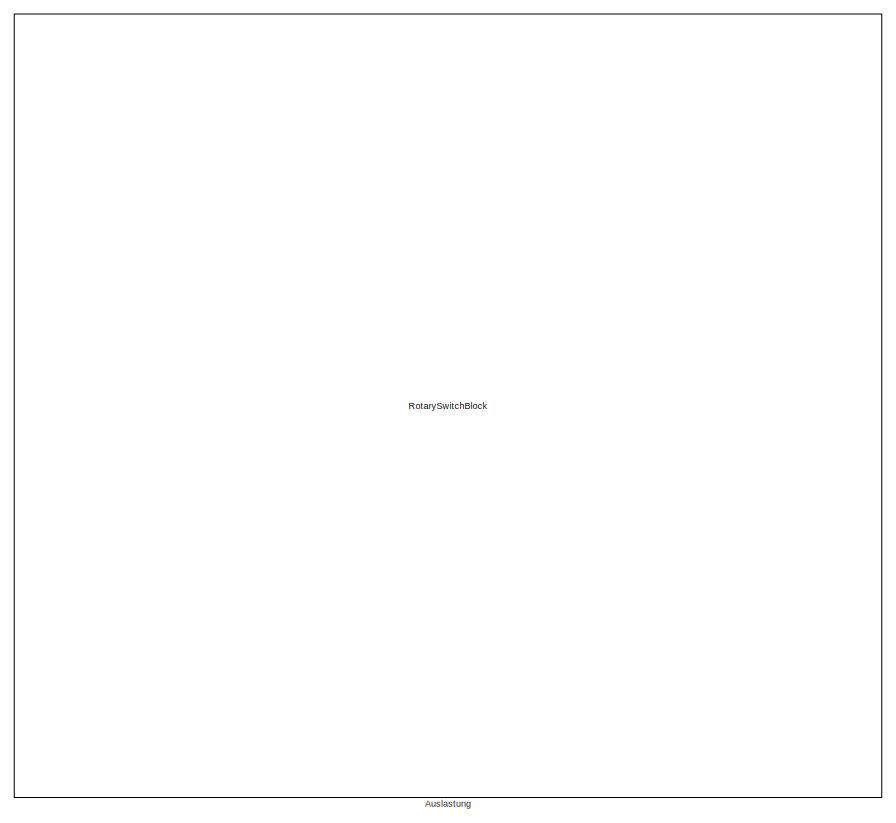
[diagram: root canvas - part 1/13, top left region]
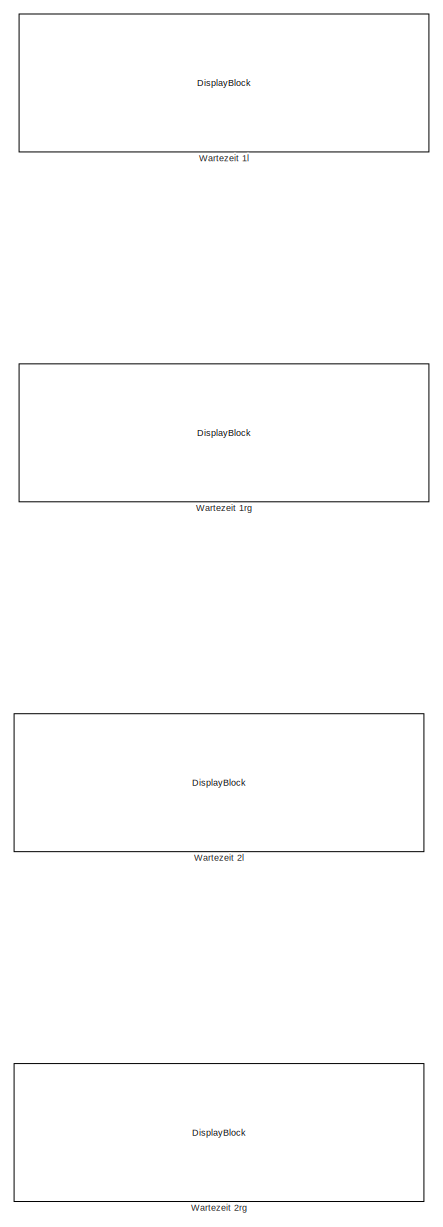
[diagram: root canvas - part 2/13, top right region]
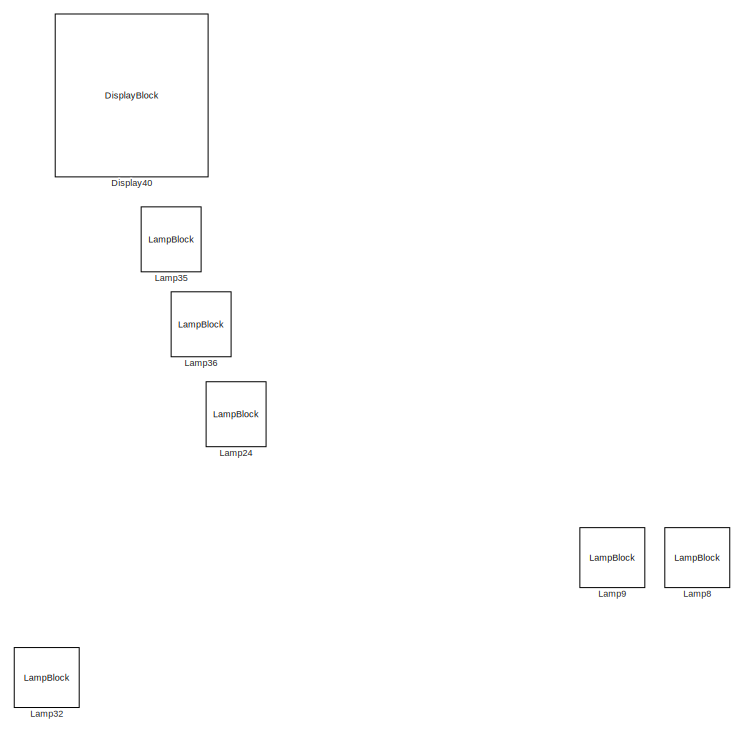
[diagram: root canvas - part 3/13, top center region]
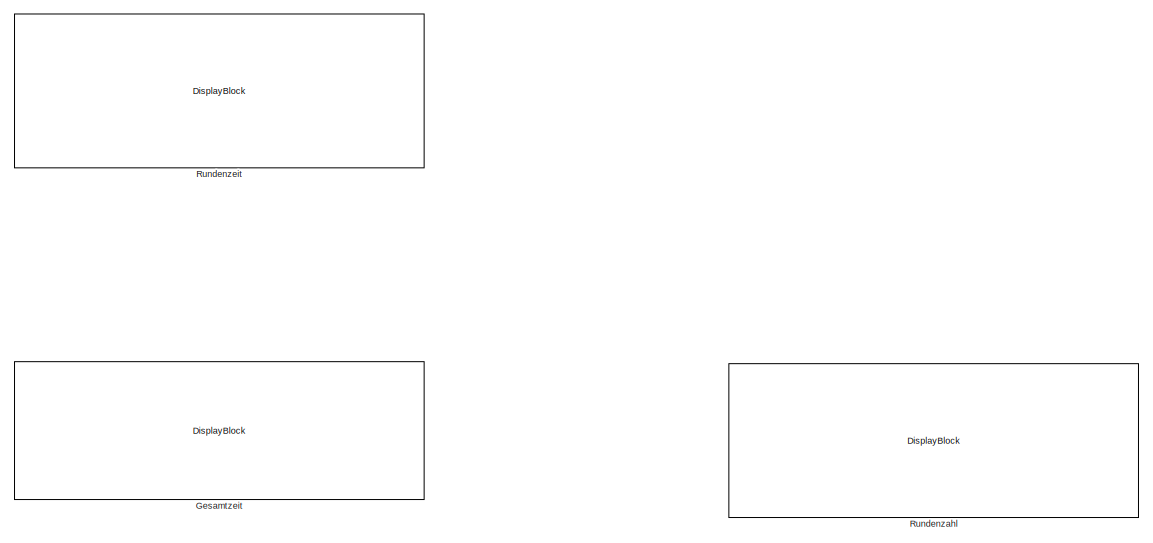
[diagram: root canvas - part 4/13, top right region]
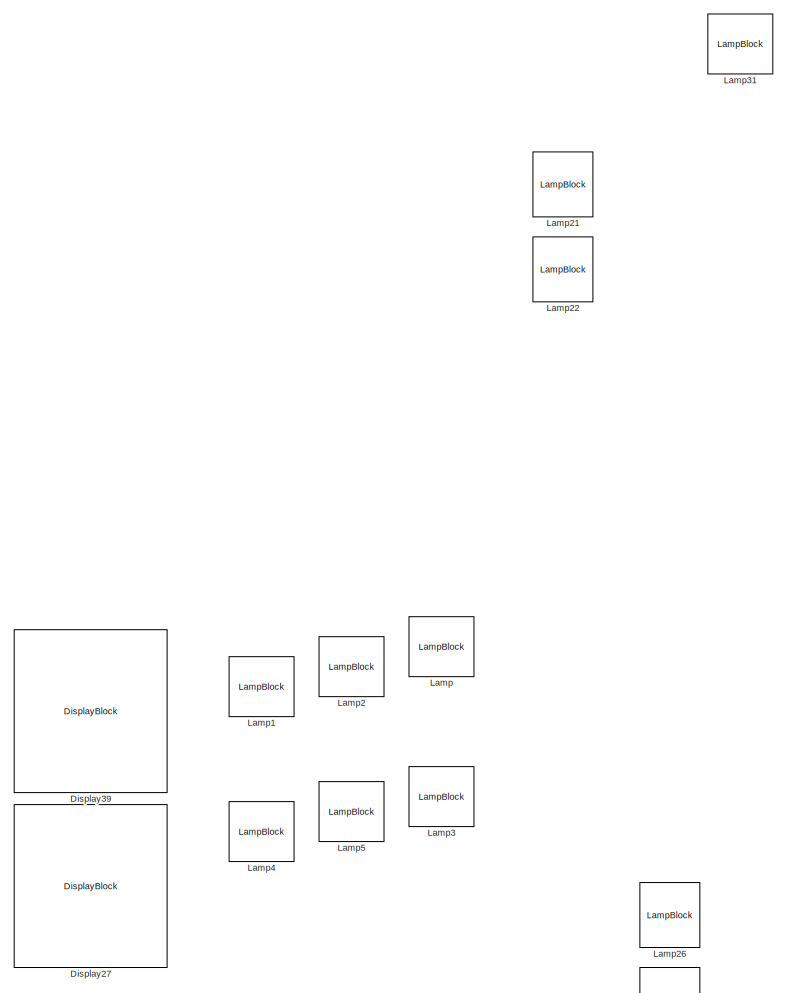
[diagram: root canvas - part 5/13, middle left region]
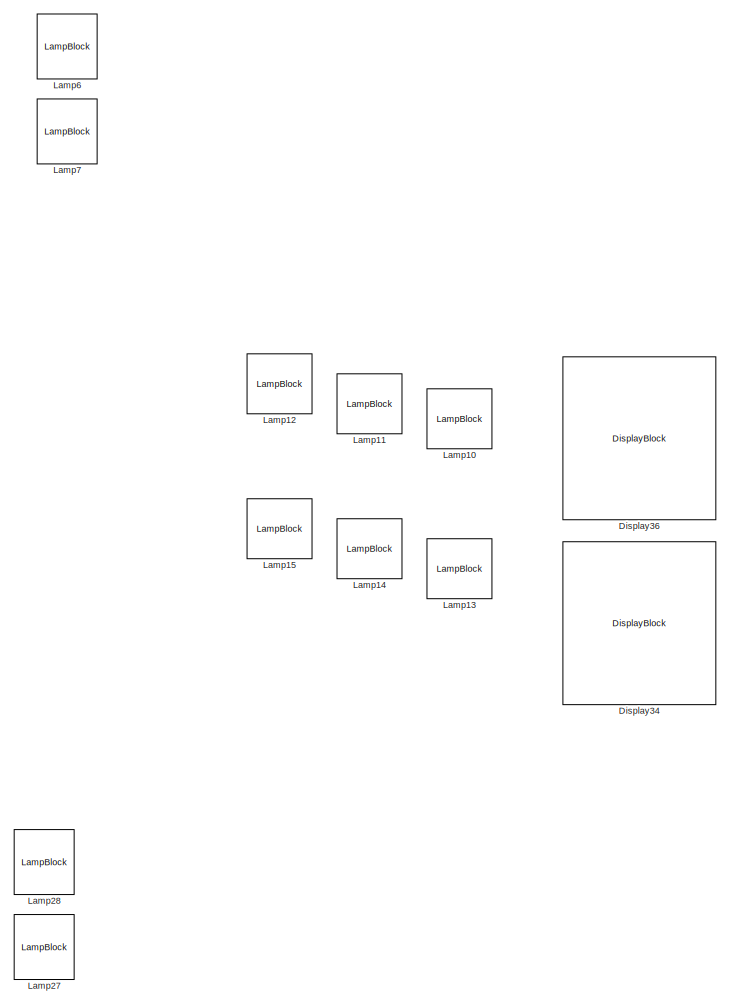
[diagram: root canvas - part 6/13, central region]
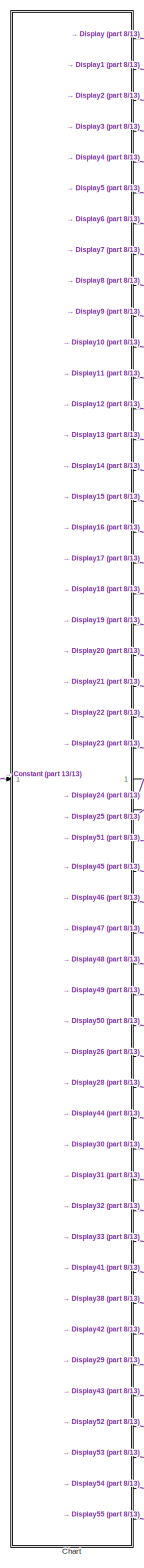
[diagram: root canvas - part 7/13, bottom left region]
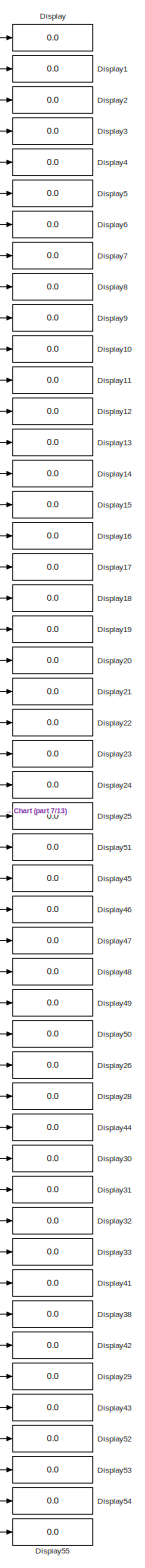
[diagram: root canvas - part 8/13, bottom left region]
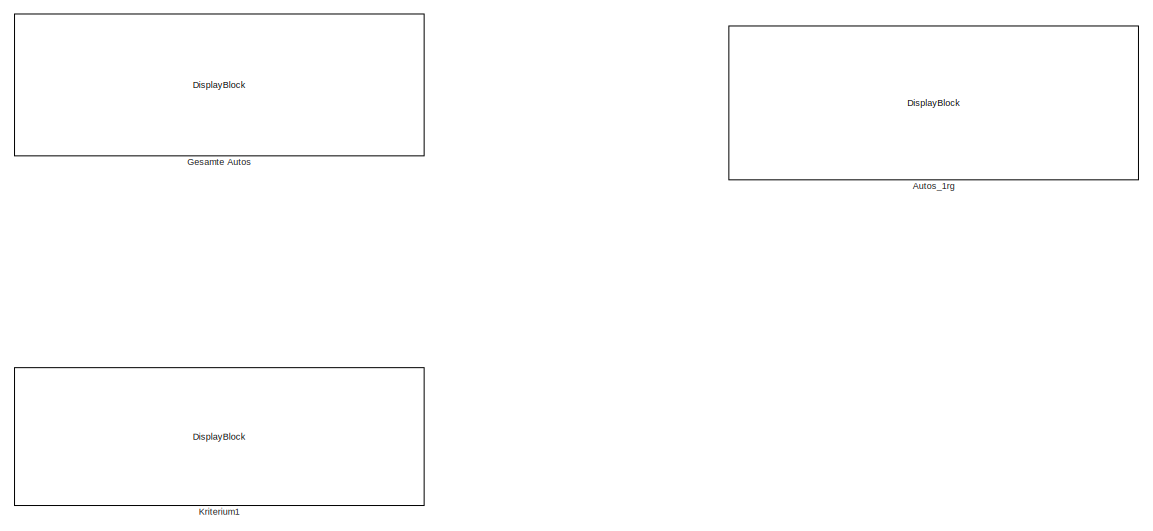
[diagram: root canvas - part 9/13, middle right region]
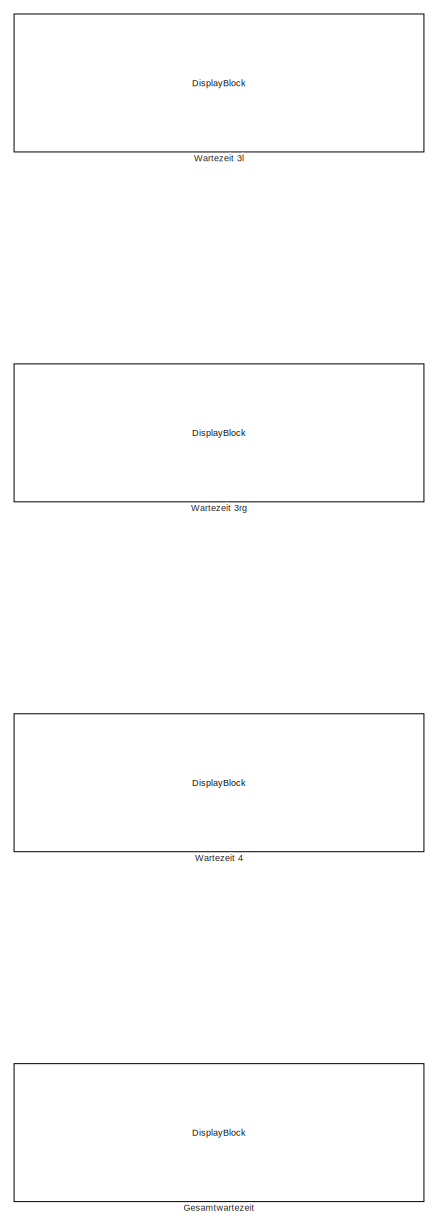
[diagram: root canvas - part 10/13, bottom right region]
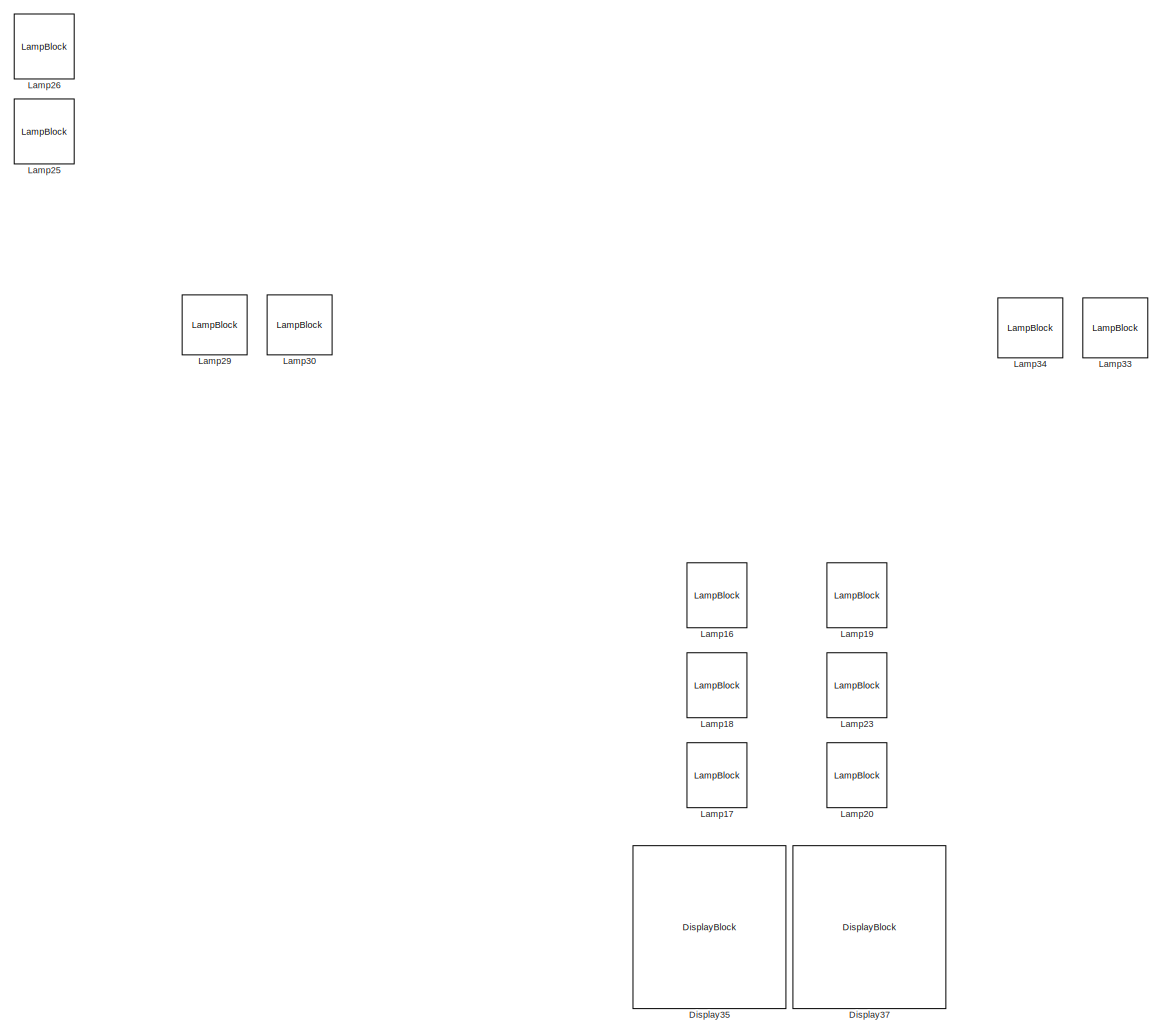
[diagram: root canvas - part 11/13, bottom center region]
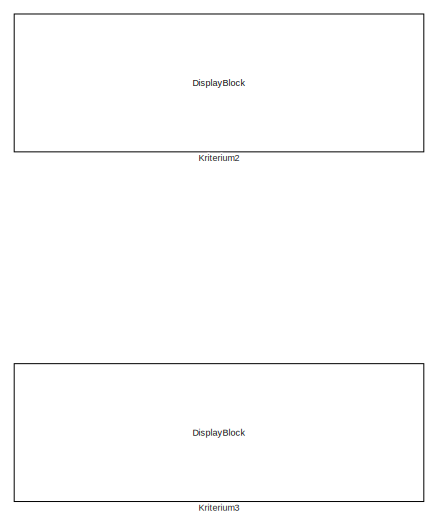
[diagram: root canvas - part 12/13, bottom right region]
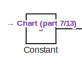
[diagram: root canvas - part 13/13, bottom left region]
MODEL slx_5e4897a48caa
KIND model
CONFIG AbsTol = auto
CONFIG EnableMultiTasking = off
CONFIG FixedStep = 1
CONFIG MaxStep = auto
CONFIG MinStep = auto
CONFIG RelTol = 1e-3
CONFIG SampleTimeConstraint = Unconstrained
CONFIG SolverName = FixedStepAuto
CONFIG StartTime = 0.0
CONFIG StopTime = 10000
WORKSPACE source: MATLAB code (in-file)
WORKSPACE code: function [autos_l1, autos_rg1, autos_2l, autos_2rg, autos_3l, autos_3rg, autos_4, fehler] = generateCars(Auslastung)
WORKSPACE code: if (auslastung == 1)
WORKSPACE autos_l1 = round(randn())
WORKSPACE autos_rg1 = round(randn())
WORKSPACE autos_2l = round(randn())
WORKSPACE autos_2rg = round(randn())
WORKSPACE autos_3l = round(randn())
WORKSPACE autos_3rg = round(randn())
WORKSPACE autos_4 = round(randn())
WORKSPACE code: else
WORKSPACE fehler = 1
WORKSPACE code: end
WORKSPACE code: if (auslastung == 2)
WORKSPACE autos_l1 = round(randn())
WORKSPACE autos_rg1 = round(4 + 2 * randn())
WORKSPACE autos_2l = round(1 + randn())
WORKSPACE autos_2rg = round(4 + 2 * randn())
WORKSPACE autos_3l = round(randn())
WORKSPACE autos_3rg = round(2 + randn())
WORKSPACE autos_4 = round(1 + randn())
WORKSPACE code: else
WORKSPACE fehler = 1
WORKSPACE code: end
WORKSPACE code: if (auslastung == 3)
WORKSPACE autos_l1 = round(1.5 + randn())
WORKSPACE autos_rg1 = round(7 + 2 * randn())
WORKSPACE autos_2l = round(2 + randn())
WORKSPACE autos_2rg = round(7 + 2 * randn())
WORKSPACE autos_3l = round(2 * randn())
WORKSPACE autos_3rg = round(3 + randn())
WORKSPACE autos_4 = round(2 + randn())
WORKSPACE code: else
WORKSPACE fehler = 1
WORKSPACE code: end
WORKSPACE code: if (auslastung == 4)
WORKSPACE autos_l1 = round(2.5 + randn())
WORKSPACE autos_rg1 = round(13 + 3 * randn())
WORKSPACE autos_2l = round(5 + randn())
WORKSPACE autos_2rg = round(13 + 3 * randn())
WORKSPACE autos_3l = round(2 + randn())
WORKSPACE autos_3rg = round(2 + randn())
WORKSPACE autos_4 = round(5 + randn())
WORKSPACE code: else
WORKSPACE fehler = 1
WORKSPACE code: end
WORKSPACE code: end
BLOCK [RotarySwitchBlock] Auslastung
  LabelPosition = Hide
BLOCK [DisplayBlock] Autos_1rg
  LabelPosition = Hide
  Transparency = 1
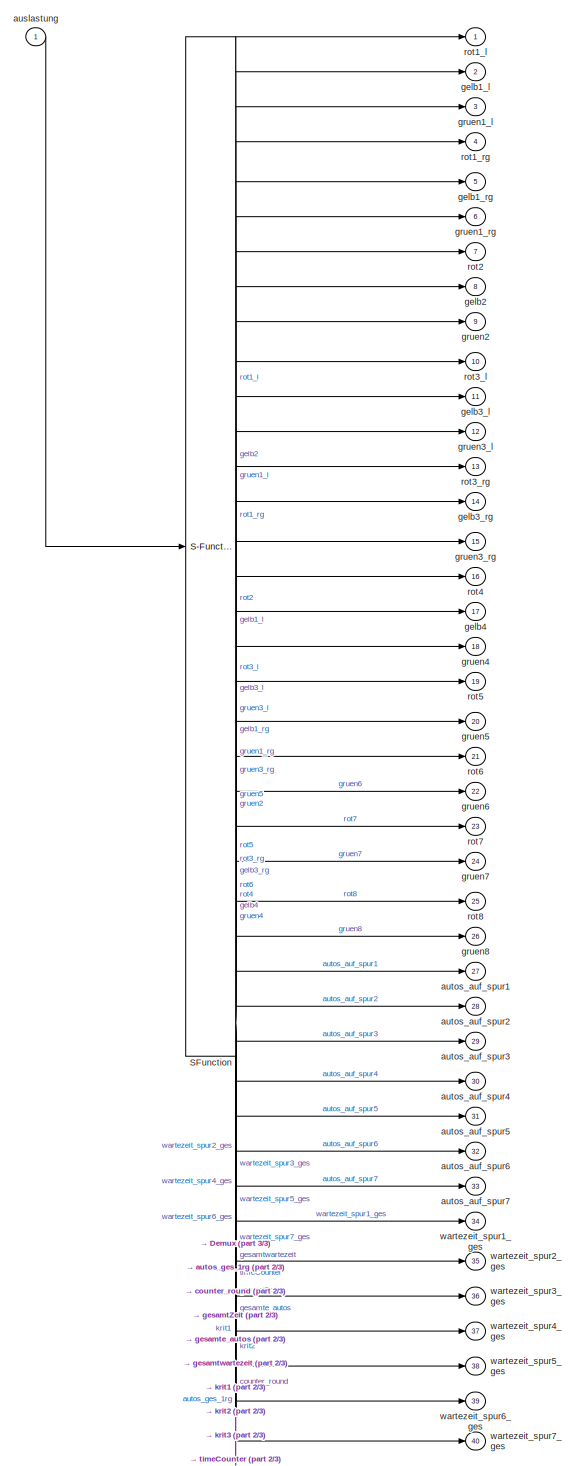
[diagram: Chart - part 1/3, most of the canvas]
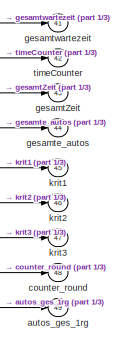
[diagram: Chart - part 2/3, bottom right region]
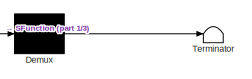
[diagram: Chart - part 3/3, bottom right region]
BLOCK [SubSystem] Chart
  ErrorFcn = Stateflow.Translate.translate
  PermitHierarchicalResolution = ExplicitOnly
  SFBlockType = Chart
  TreatAsAtomicUnit = on
BLOCK [Demux] Chart/ Demux 
  Outputs = 1
BLOCK [S-Function] Chart/ SFunction 
  EnableBusSupport = on
  FunctionName = sf_sfun
  PortCounts = [1 50]
  SFcnIsStateOwnerBlock = off
  SFunctionDeploymentMode = off
  Tag = Stateflow S-Function 3
BLOCK [Terminator] Chart/ Terminator 
BLOCK [Inport] Chart/auslastung
BLOCK [Outport] Chart/autos_auf_spur1
  Port = 27
BLOCK [Outport] Chart/autos_auf_spur2
  Port = 28
BLOCK [Outport] Chart/autos_auf_spur3
  Port = 29
BLOCK [Outport] Chart/autos_auf_spur4
  Port = 30
BLOCK [Outport] Chart/autos_auf_spur5
  Port = 31
BLOCK [Outport] Chart/autos_auf_spur6
  Port = 32
BLOCK [Outport] Chart/autos_auf_spur7
  Port = 33
BLOCK [Outport] Chart/autos_ges_1rg
  Port = 49
BLOCK [Outport] Chart/counter_round
  Port = 48
BLOCK [Outport] Chart/gelb1_l
  Port = 2
BLOCK [Outport] Chart/gelb1_rg
  Port = 5
BLOCK [Outport] Chart/gelb2
  Port = 8
BLOCK [Outport] Chart/gelb3_l
  Port = 11
BLOCK [Outport] Chart/gelb3_rg
  Port = 14
BLOCK [Outport] Chart/gelb4
  Port = 17
BLOCK [Outport] Chart/gesamtZeit
  Port = 43
BLOCK [Outport] Chart/gesamte_autos
  Port = 44
BLOCK [Outport] Chart/gesamtwartezeit
  Port = 41
BLOCK [Outport] Chart/gruen1_l
  Port = 3
BLOCK [Outport] Chart/gruen1_rg
  Port = 6
BLOCK [Outport] Chart/gruen2
  Port = 9
BLOCK [Outport] Chart/gruen3_l
  Port = 12
BLOCK [Outport] Chart/gruen3_rg
  Port = 15
BLOCK [Outport] Chart/gruen4
  Port = 18
BLOCK [Outport] Chart/gruen5
  Port = 20
BLOCK [Outport] Chart/gruen6
  Port = 22
BLOCK [Outport] Chart/gruen7
  Port = 24
BLOCK [Outport] Chart/gruen8
  Port = 26
BLOCK [Outport] Chart/krit1
  Port = 45
BLOCK [Outport] Chart/krit2
  Port = 46
BLOCK [Outport] Chart/krit3
  Port = 47
BLOCK [Outport] Chart/rot1_l
BLOCK [Outport] Chart/rot1_rg
  Port = 4
BLOCK [Outport] Chart/rot2
  Port = 7
BLOCK [Outport] Chart/rot3_l
  Port = 10
BLOCK [Outport] Chart/rot3_rg
  Port = 13
BLOCK [Outport] Chart/rot4
  Port = 16
BLOCK [Outport] Chart/rot5
  Port = 19
BLOCK [Outport] Chart/rot6
  Port = 21
BLOCK [Outport] Chart/rot7
  Port = 23
BLOCK [Outport] Chart/rot8
  Port = 25
BLOCK [Outport] Chart/timeCounter
  Port = 42
BLOCK [Outport] Chart/wartezeit_spur1_ges
  Port = 34
BLOCK [Outport] Chart/wartezeit_spur2_ges
  Port = 35
BLOCK [Outport] Chart/wartezeit_spur3_ges
  Port = 36
BLOCK [Outport] Chart/wartezeit_spur4_ges
  Port = 37
BLOCK [Outport] Chart/wartezeit_spur5_ges
  Port = 38
BLOCK [Outport] Chart/wartezeit_spur6_ges
  Port = 39
BLOCK [Outport] Chart/wartezeit_spur7_ges
  Port = 40
BLOCK [Constant] Constant
  Value = 3
BLOCK [Display] Display
  Decimation = 1
BLOCK [Display] Display1
  Decimation = 1
BLOCK [Display] Display10
  Decimation = 1
BLOCK [Display] Display11
  Decimation = 1
BLOCK [Display] Display12
  Decimation = 1
BLOCK [Display] Display13
  Decimation = 1
BLOCK [Display] Display14
  Decimation = 1
BLOCK [Display] Display15
  Decimation = 1
BLOCK [Display] Display16
  Decimation = 1
BLOCK [Display] Display17
  Decimation = 1
BLOCK [Display] Display18
  Decimation = 1
BLOCK [Display] Display19
  Decimation = 1
BLOCK [Display] Display2
  Decimation = 1
BLOCK [Display] Display20
  Decimation = 1
BLOCK [Display] Display21
  Decimation = 1
BLOCK [Display] Display22
  Decimation = 1
BLOCK [Display] Display23
  Decimation = 1
BLOCK [Display] Display24
  Decimation = 1
BLOCK [Display] Display25
  Decimation = 1
BLOCK [Display] Display26
  Decimation = 1
BLOCK [DisplayBlock] Display27
  LabelPosition = Hide
  Layout = Fill available space
  Transparency = 1
BLOCK [Display] Display28
  Decimation = 1
BLOCK [Display] Display29
  Decimation = 1
BLOCK [Display] Display3
  Decimation = 1
BLOCK [Display] Display30
  Decimation = 1
BLOCK [Display] Display31
  Decimation = 1
BLOCK [Display] Display32
  Decimation = 1
BLOCK [Display] Display33
  Decimation = 1
BLOCK [DisplayBlock] Display34
  LabelPosition = Hide
  Layout = Fill available space
  Transparency = 1
BLOCK [DisplayBlock] Display35
  LabelPosition = Hide
  Layout = Fill available space
  Transparency = 1
BLOCK [DisplayBlock] Display36
  LabelPosition = Hide
  Layout = Fill available space
  Transparency = 1
BLOCK [DisplayBlock] Display37
  LabelPosition = Hide
  Layout = Fill available space
  Transparency = 1
BLOCK [Display] Display38
  Decimation = 1
BLOCK [DisplayBlock] Display39
  LabelPosition = Hide
  Layout = Fill available space
  Transparency = 1
BLOCK [Display] Display4
  Decimation = 1
BLOCK [DisplayBlock] Display40
  LabelPosition = Hide
  Layout = Fill available space
  Transparency = 1
BLOCK [Display] Display41
  Decimation = 1
BLOCK [Display] Display42
  Decimation = 1
BLOCK [Display] Display43
  Decimation = 1
BLOCK [Display] Display44
  Decimation = 1
BLOCK [Display] Display45
  Decimation = 1
BLOCK [Display] Display46
  Decimation = 1
BLOCK [Display] Display47
  Decimation = 1
BLOCK [Display] Display48
  Decimation = 1
BLOCK [Display] Display49
  Decimation = 1
BLOCK [Display] Display5
  Decimation = 1
BLOCK [Display] Display50
  Decimation = 1
BLOCK [Display] Display51
  Decimation = 1
BLOCK [Display] Display52
  Decimation = 1
BLOCK [Display] Display53
  Decimation = 1
BLOCK [Display] Display54
  Decimation = 1
BLOCK [Display] Display55
  Decimation = 1
BLOCK [Display] Display6
  Decimation = 1
BLOCK [Display] Display7
  Decimation = 1
BLOCK [Display] Display8
  Decimation = 1
BLOCK [Display] Display9
  Decimation = 1
BLOCK [DisplayBlock] Gesamte Autos
  LabelPosition = Hide
  Transparency = 1
BLOCK [DisplayBlock] Gesamtwartezeit
  Format = Integer
  LabelPosition = Hide
  Transparency = 1
BLOCK [DisplayBlock] Gesamtzeit
  LabelPosition = Hide
  Transparency = 1
BLOCK [DisplayBlock] Kriterium1
  LabelPosition = Hide
  Transparency = 1
BLOCK [DisplayBlock] Kriterium2
  LabelPosition = Hide
  Transparency = 1
BLOCK [DisplayBlock] Kriterium3
  LabelPosition = Hide
  Transparency = 1
BLOCK [LampBlock] Lamp
  LabelPosition = Hide
BLOCK [LampBlock] Lamp1
  LabelPosition = Hide
BLOCK [LampBlock] Lamp10
  LabelPosition = Hide
BLOCK [LampBlock] Lamp11
  LabelPosition = Hide
BLOCK [LampBlock] Lamp12
  LabelPosition = Hide
BLOCK [LampBlock] Lamp13
  LabelPosition = Hide
BLOCK [LampBlock] Lamp14
  LabelPosition = Hide
BLOCK [LampBlock] Lamp15
  LabelPosition = Hide
BLOCK [LampBlock] Lamp16
  LabelPosition = Hide
  NameLocation = right
BLOCK [LampBlock] Lamp17
  LabelPosition = Hide
  NameLocation = right
BLOCK [LampBlock] Lamp18
  LabelPosition = Hide
  NameLocation = right
BLOCK [LampBlock] Lamp19
  LabelPosition = Hide
  NameLocation = right
BLOCK [LampBlock] Lamp2
  LabelPosition = Hide
BLOCK [LampBlock] Lamp20
  LabelPosition = Hide
  NameLocation = right
BLOCK [LampBlock] Lamp21
  LabelPosition = Hide
  NameLocation = right
BLOCK [LampBlock] Lamp22
  LabelPosition = Hide
  NameLocation = right
BLOCK [LampBlock] Lamp23
  LabelPosition = Hide
  NameLocation = right
BLOCK [LampBlock] Lamp24
  LabelPosition = Hide
  NameLocation = left
BLOCK [LampBlock] Lamp25
  LabelPosition = Hide
  NameLocation = left
BLOCK [LampBlock] Lamp26
  LabelPosition = Hide
  NameLocation = left
BLOCK [LampBlock] Lamp27
  LabelPosition = Hide
  NameLocation = left
BLOCK [LampBlock] Lamp28
  LabelPosition = Hide
  NameLocation = left
BLOCK [LampBlock] Lamp29
  LabelPosition = Hide
  NameLocation = top
BLOCK [LampBlock] Lamp3
  LabelPosition = Hide
BLOCK [LampBlock] Lamp30
  LabelPosition = Hide
  NameLocation = top
BLOCK [LampBlock] Lamp31
  LabelPosition = Hide
  NameLocation = top
BLOCK [LampBlock] Lamp32
  LabelPosition = Hide
  NameLocation = top
BLOCK [LampBlock] Lamp33
  LabelPosition = Hide
BLOCK [LampBlock] Lamp34
  LabelPosition = Hide
BLOCK [LampBlock] Lamp35
  LabelPosition = Hide
  NameLocation = left
BLOCK [LampBlock] Lamp36
  LabelPosition = Hide
  NameLocation = left
BLOCK [LampBlock] Lamp4
  LabelPosition = Hide
BLOCK [LampBlock] Lamp5
  LabelPosition = Hide
BLOCK [LampBlock] Lamp6
  LabelPosition = Hide
  NameLocation = right
BLOCK [LampBlock] Lamp7
  LabelPosition = Hide
  NameLocation = right
BLOCK [LampBlock] Lamp8
  LabelPosition = Hide
  NameLocation = top
BLOCK [LampBlock] Lamp9
  LabelPosition = Hide
  NameLocation = top
BLOCK [DisplayBlock] Rundenzahl
  LabelPosition = Hide
  Transparency = 1
BLOCK [DisplayBlock] Rundenzeit
  LabelPosition = Hide
  Transparency = 1
BLOCK [DisplayBlock] Wartezeit 1l
  Format = Integer
  LabelPosition = Hide
  Transparency = 1
BLOCK [DisplayBlock] Wartezeit 1rg
  Format = Integer
  LabelPosition = Hide
  Transparency = 1
BLOCK [DisplayBlock] Wartezeit 2l
  Format = Integer
  LabelPosition = Hide
  Transparency = 1
BLOCK [DisplayBlock] Wartezeit 2rg
  Format = Integer
  LabelPosition = Hide
  Transparency = 1
BLOCK [DisplayBlock] Wartezeit 3l
  Format = Integer
  LabelPosition = Hide
  Transparency = 1
BLOCK [DisplayBlock] Wartezeit 3rg
  Format = Integer
  LabelPosition = Hide
  Transparency = 1
BLOCK [DisplayBlock] Wartezeit 4
  Format = Integer
  LabelPosition = Hide
  Transparency = 1
LINE Chart:1 -> Display:1
LINE Chart:10 -> Display9:1
LINE Chart:11 -> Display10:1
LINE Chart:12 -> Display11:1
LINE Chart:13 -> Display12:1
LINE Chart:14 -> Display13:1
LINE Chart:15 -> Display14:1
LINE Chart:16 -> Display15:1
LINE Chart:17 -> Display16:1
LINE Chart:18 -> Display17:1
LINE Chart:19 -> Display18:1
LINE Chart:2 -> Display1:1
LINE Chart:20 -> Display19:1
LINE Chart:21 -> Display20:1
LINE Chart:22 -> Display21:1
LINE Chart:23 -> Display22:1
LINE Chart:24 -> Display23:1
LINE Chart:25 -> Display24:1
LINE Chart:26 -> Display25:1
LINE Chart:27 -> Display51:1
LINE Chart:28 -> Display45:1
LINE Chart:29 -> Display46:1
LINE Chart:3 -> Display2:1
LINE Chart:30 -> Display47:1
LINE Chart:31 -> Display48:1
LINE Chart:32 -> Display49:1
LINE Chart:33 -> Display50:1
LINE Chart:34 -> Display26:1
LINE Chart:35 -> Display28:1
LINE Chart:36 -> Display44:1
LINE Chart:37 -> Display30:1
LINE Chart:38 -> Display31:1
LINE Chart:39 -> Display32:1
LINE Chart:4 -> Display3:1
LINE Chart:40 -> Display33:1
LINE Chart:41 -> Display41:1
LINE Chart:42 -> Display38:1
LINE Chart:43 -> Display42:1
LINE Chart:44 -> Display29:1
LINE Chart:45 -> Display43:1
LINE Chart:46 -> Display52:1
LINE Chart:47 -> Display53:1
LINE Chart:48 -> Display54:1
LINE Chart:49 -> Display55:1
LINE Chart:5 -> Display4:1
LINE Chart:6 -> Display5:1
LINE Chart:7 -> Display6:1
LINE Chart:8 -> Display7:1
LINE Chart:9 -> Display8:1
LINE Constant:1 -> Chart:1
CHART Chart states=76 transitions=263
  STATE_LABEL 'Start\nentry:\nclear all;\nrot1_l = 1;\ngelb1_l = 0;\ngruen1_l = 0;\nrot1_rg = 1;\ngelb1_rg = 0;\ngruen1_rg = 0;\nrot2 = 1;\ngelb2 = 0;\ngruen2 = 0;\nrot3_l = 1;\ngelb3_l = 0;\ngruen3_l = 0;\nrot3_rg = 1;\ngelb3_rg = 0;\ngruen3_rg = 0;\nrot4 = 1;\ngelb4 = 0;\ngruen4 = 0;\nrot5 = 1;\ngruen5 = 0;\nrot6 = 1;\ngruen6 = 0;\nrot7 = 1;\ngruen7 = 0;\nrot8 = 1;\ngruen8 = 0;\ntimeCounter = 0;\ntimer_spuren = [0 0 0 0 0 0 0];\ngesamtZeit ...<+769ch>'
  STATE_LABEL 'dokumentiere_startzeiten_initialisiere_wartezeiten\nen:\nstartzeiten1 = spur1;\nstartzeiten2 = spur2;\nstartzeiten3 = spur3;\nstartzeiten4 = spur4;\nstartzeiten5 = spur5;\nstartzeiten6 = spur6;\nstartzeiten7 = spur7;\nwartezeiten1 = zeros(1, length(startzeiten1));\nwartezeiten2 = zeros(1, length(startzeiten2));\nwartezeiten3 = zeros(1, length(startzeiten3));\nwartezeiten4 = zeros(1, length(startzeiten4));\nwar...<+138ch>'
  STATE_LABEL 'endzeiten_initialisieren\nen:\nendzeiten1 = zeros(1, length(spur1));\nendzeiten2 = zeros(1, length(spur2));\nendzeiten3 = zeros(1, length(spur3));\nendzeiten4 = zeros(1, length(spur4));\nendzeiten5 = zeros(1, length(spur5));\nendzeiten6 = zeros(1, length(spur6));\nendzeiten7 = zeros(1, length(spur7));'
  STATE_LABEL 'autos_neu_fkt = generiere_autos_neu(N_fkt, zeit_abstand_fkt, auslastung_fkt)'
  STATE_LABEL 'SCRIPT:\nfunction autos_neu_fkt = generiere_autos_neu(N_fkt, zeit_abstand_fkt, auslastung_fkt)\n    zeiten_fkt = zeros(1,N_fkt); %Platzhalter für Spawnzeiten\n    for i=1:N\n        zeiten_fkt(i) = zeit_abstand_fkt * i + randn();\n        if zeiten_fkt(i) < 0\n            zeiten_fkt(i) = 0\n        end\n    end\n\t\n    switch (auslastung_fkt)\n        case 1\n            wahrscheinlichkeiten = [0.12, 0.20, 0....<+1032ch>'
  STATE_LABEL '[spur1fkt, spur2fkt, spur3fkt, spur4fkt, spur5fkt, spur6fkt, spur7fkt] = spuren_aus_autos(autos_fkt, N_fkt)'
  STATE_LABEL 'SCRIPT:\nfunction [spur1fkt, spur2fkt, spur3fkt, spur4fkt, spur5fkt, spur6fkt, spur7fkt] = spuren_aus_autos(autos_fkt, N_fkt)\n    counter1 = 1; counter2 = 1; counter3 = 1; counter4 = 1; counter5 = 1; counter6 = 1; counter7 = 1;\n    spur1fkt = zeros(1,N_fkt/2);\n    spur2fkt = zeros(1,N_fkt/2);\n    spur3fkt = zeros(1,N_fkt/2);\n    spur4fkt = zeros(1,N_fkt/2);\n    spur5fkt = zeros(1,N_fkt/2);\n    spur...<+1231ch>'
  STATE_LABEL '[autos_auf_spur_fkt, spur_autos] = autos_auf_spur_generieren(spur_autos, timer, autos_auf_spur_fkt)'
  STATE_LABEL 'SCRIPT:\nfunction [autos_auf_spur_fkt, spur_autos] = autos_auf_spur_generieren(spur_autos, timer, autos_auf_spur_fkt)\n    for i = 1:length(spur_autos)\n        if (spur_autos(i) < timer && spur_autos(i) ~= 0)\n            autos_auf_spur_fkt = autos_auf_spur_fkt + 1;\n            spur_autos(i) = 0;\n        end\n    end\nend\n'
  STATE_LABEL '[anz_autos_fkt, autos_auf_spur_fkt, counter_neu_fkt, endzeiten] = generiere_gruenphase(spur, laenge, autos_auf_spur_u, counter_alt, start_timer_fkt, endzeiten, startzeiten_fkt, auslastung_fkt, autos_spur1_flag_fkt)'
  STATE_LABEL 'SCRIPT:\nfunction [anz_autos_fkt, autos_auf_spur_fkt, counter_neu_fkt, endzeiten] = generiere_gruenphase(spur, laenge, autos_auf_spur_u, counter_alt, start_timer_fkt, endzeiten, startzeiten_fkt, auslastung_fkt, autos_spur1_flag_fkt) \n    if (spur == 2 || spur == 4)  \n        if laenge < 8.9\n            anz_autos_fkt = round(0.314739 * power(laenge, 1.2629099));\n            for i = 1:min([anz_autos_...<+3608ch>'
  STATE_LABEL 'zeit_abstand_fkt = zeit_abstand_aus_auslastung(auslastung_fkt)'
  STATE_LABEL 'SCRIPT:\nfunction zeit_abstand_fkt = zeit_abstand_aus_auslastung(auslastung_fkt)\n    switch (auslastung_fkt)\n        case 1\n            zeit_abstand_fkt = 10\n        case 2\n            zeit_abstand_fkt = 4\n        case 3\n            zeit_abstand_fkt = 1.6\n        case 4\n            zeit_abstand_fkt = 0.95\n        case 5\n            zeit_abstand_fkt = 0.84\n        otherwise\n            zeit_abstand_...<+23ch>'
  STATE_LABEL 'count_spur = countOnwards(time, timeElapsed, spuren)'
  STATE_LABEL 'SCRIPT:\nfunction count_spur = countOnwards(time, timeElapsed, spuren)\n    count_spur = time;\n    for i = 1 : length(time)\n        if spuren(i) == 1\n            count_spur(i) = count_spur(i) + timeElapsed;\n        end\n    end\nend'
  STATE_LABEL 'rg1_ampel2_rotgelb\nentry:\ngelb1_rg = 1;\ngelb2 = 1;'
  STATE_LABEL 'l1_rg1_rotgelb\nentry:\ngelb1_l = 1;\ngelb1_rg = 1;'
  STATE_LABEL 'rg1_ampel2_gruen\nentry:\nrot1_rg = 0;\ngelb1_rg = 0;\ngruen1_rg = 1;\nrot2 = 0;\ngelb2 = 0;\ngruen2 = 1;\nrot7 = 0;\ngruen7 = 1;\nrot8 = 0;\ngruen8 = 1;'
  STATE_LABEL 'l1_rg1_gruen\nentry:\nrot1_l = 0;\ngelb1_l = 0;\ngruen1_l = 1;\nrot1_rg = 0;\ngelb1_rg = 0;\ngruen1_rg = 1;\nrot7 = 0;\ngruen7 = 1;'
  STATE_LABEL 'timer = resetTimer'
  STATE_LABEL 'SCRIPT:\nfunction timer = resetTimer()\n    timer = 0;\nend\n'
  STATE_LABEL 'l1_gelb\nentry:\ngelb1_l = 1;\ngruen1_l = 0;'
  STATE_LABEL 'timer = refresher(startTime, timeElapsed)'
  STATE_LABEL 'SCRIPT:\nfunction timer = refresher(startTime, timeElapsed)\n    timer = startTime + timeElapsed;\nend'
  STATE_LABEL 'l1_rot\nentry:\nrot1_l = 1;\ngelb1_l = 0;'
  STATE_LABEL 'Fuss7_rot1\nentry:\nrot7 = 1;\ngruen7 = 0;'
  STATE_LABEL 'l1_rot1\nentry:\nrot1_l = 1;\ngelb1_l = 0;'
  STATE_LABEL 'rg1_gelb1\nentry:\ngelb1_rg = 1;\ngruen1_rg = 0;'
  STATE_LABEL 'ampel2_rotgelb\nentry:\ngelb2 = 1;'
  STATE_LABEL 'ampel2_fuss8_gruen\nrot2 = 0;\ngelb2 = 0;\ngruen2 = 1;\nrot8 = 0;\ngruen8 = 1;'
  STATE_LABEL 'rg1_rot1\nentry:\ngelb1_rg = 0;\nrot1_rg = 1;'
  STATE_LABEL 'Fuss7_rot\nentry:\nrot7 = 1;\ngruen7 = 0;'
  STATE_LABEL 'rg1_gelb\nentry:\ngelb1_rg = 1;\ngruen1_rg = 0;'
  STATE_LABEL 'rg1_rot\nentry:\ngelb1_rg = 0;\nrot1_rg = 1;'
  STATE_LABEL 'fuss8_rot7\nentry:\nrot8 = 1;\ngruen8 = 0;'
  STATE_LABEL 'rg1_rot4\nentry:\ngelb1_rg = 0;\nrot1_rg = 1;'
  STATE_LABEL 'fuss8_rot3\nentry:\nrot8 = 1;\ngruen8 = 0;'
  STATE_LABEL 'rg1_rot9\nentry:\ngelb1_rg = 0;\nrot1_rg = 1'
  STATE_LABEL 'fuss8_rot2\nentry:\nrot8 = 1;\ngruen8 = 0;'
  STATE_LABEL 'rg1_rot8\nentry:\ngelb1_rg = 0;\nrot1_rg = 1'
CHART  states=0 transitions=0
